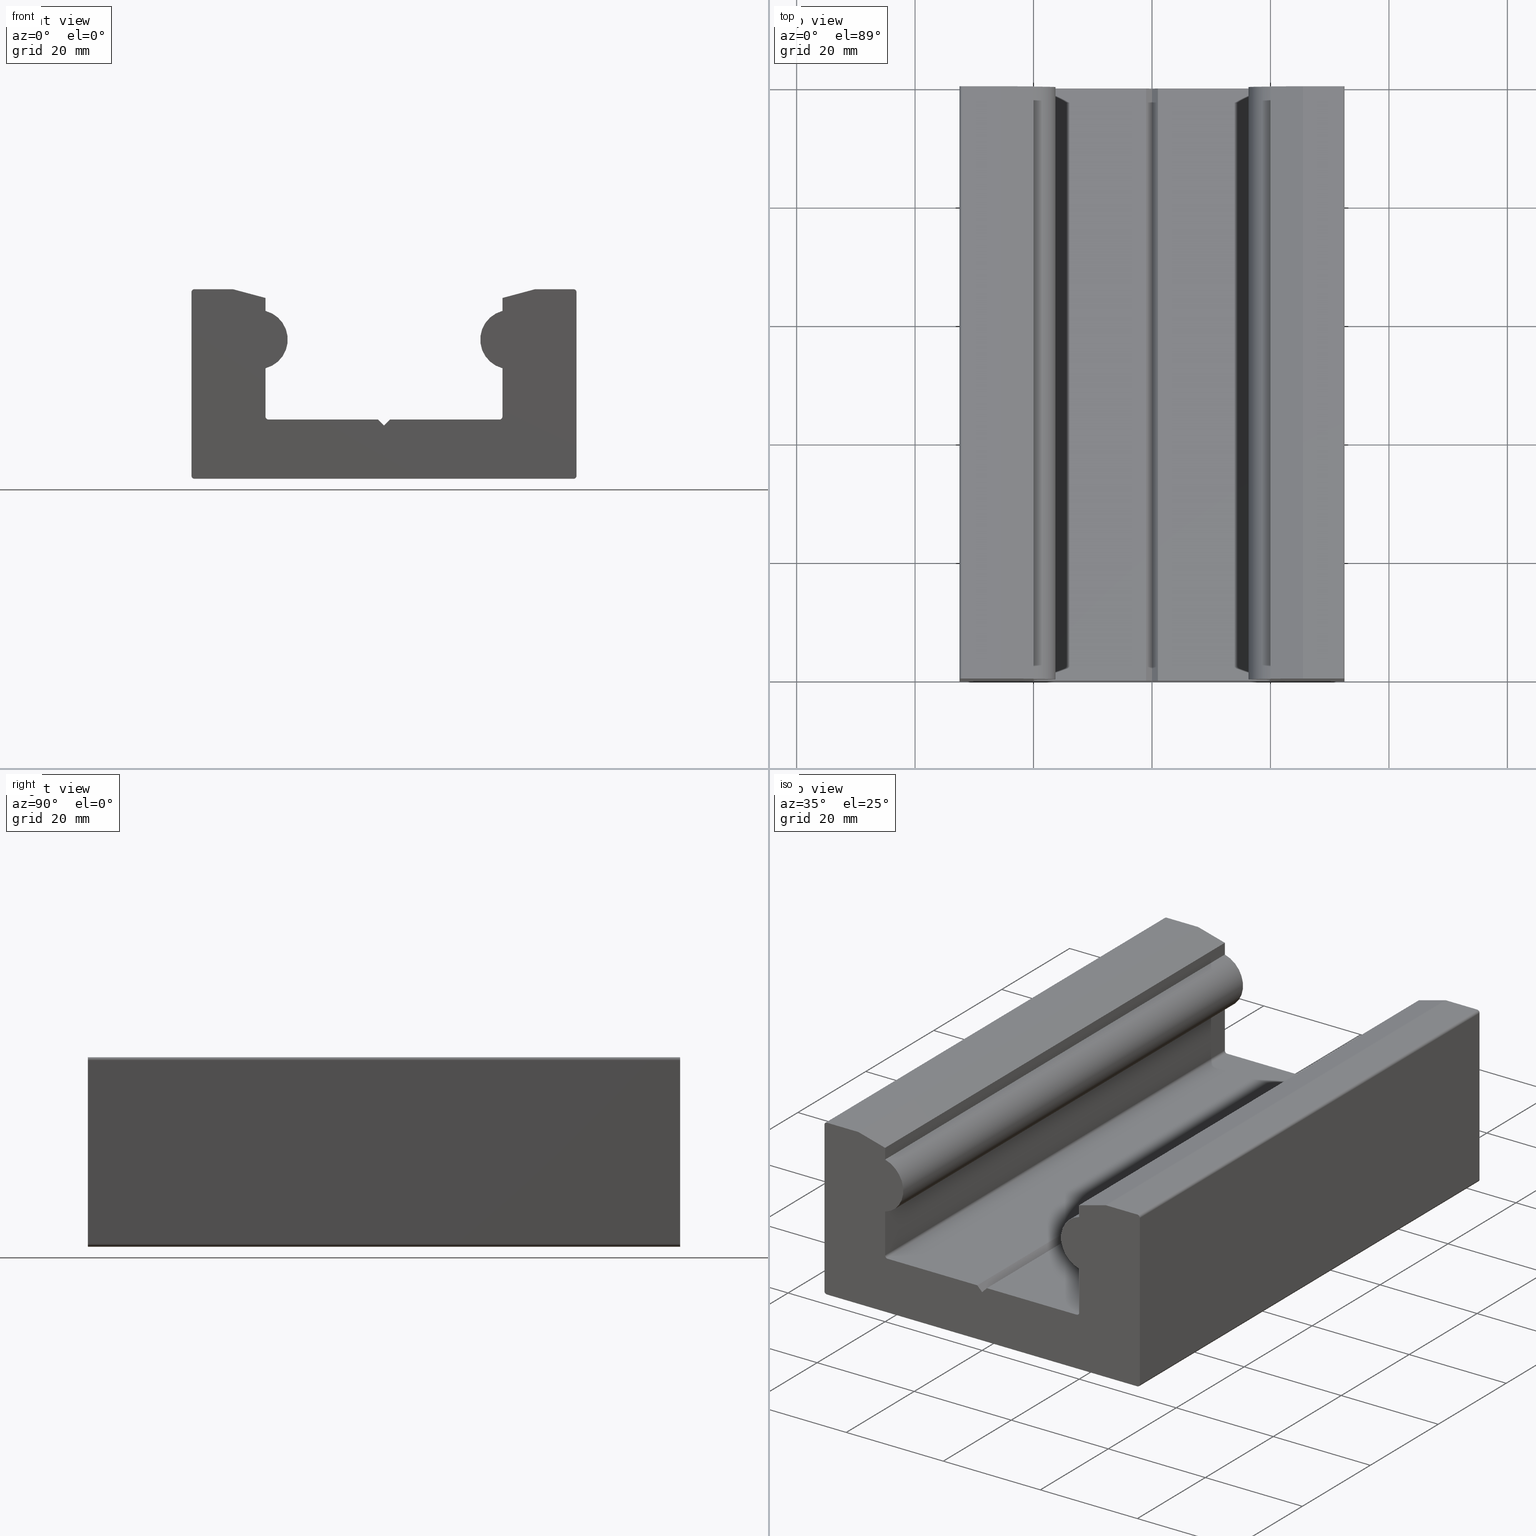
[diagram: canonical four-view strip — front | top / right | iso, engineering-drawing reading convention]
A machine part, canonical four-view strip (front | top / right | iso — engineering-drawing reading convention). The complete STEP part file that produces these views, byte-faithful:
ISO-10303-21;
HEADER;
/* Generated by software containing ST-Developer
 * from STEP Tools, Inc. (www.steptools.com) 
 */

FILE_DESCRIPTION(
/* description */ ('PROF.GUIDA IL65 65x32 '),
/* implementation_level */ '2;1');

FILE_NAME(
/* name */ 
'C:\\Users\\tecnico5\\Desktop\\SITOWEB\\BPRGD0000017\\BPRGD0000017.stp',

/* time_stamp */ '2022-07-26T17:03:16+02:00',
/* author */ ('tecnico3.vi'),
/* organization */ (''),
/* preprocessor_version */ 'ST-DEVELOPER v18.1',
/* originating_system */ 'Autodesk Inventor 2022',
/* authorisation */ '');

FILE_SCHEMA (('AUTOMOTIVE_DESIGN { 1 0 10303 214 3 1 1 }'));
ENDSEC;

DATA;
#10=MECHANICAL_DESIGN_GEOMETRIC_PRESENTATION_REPRESENTATION('',(#464,#465,
#466),#837);
#11=SHAPE_REPRESENTATION_RELATIONSHIP('SRR','None',#844,#12);
#12=ADVANCED_BREP_SHAPE_REPRESENTATION('',(#13),#836);
#13=MANIFOLD_SOLID_BREP('Solido1',#492);
#14=PLANE('',#521);
#15=PLANE('',#525);
#16=PLANE('',#526);
#17=PLANE('',#527);
#18=PLANE('',#528);
#19=PLANE('',#532);
#20=PLANE('',#533);
#21=PLANE('',#534);
#22=PLANE('',#535);
#23=PLANE('',#539);
#24=PLANE('',#540);
#25=PLANE('',#541);
#26=PLANE('',#542);
#27=PLANE('',#546);
#28=PLANE('',#550);
#29=PLANE('',#554);
#30=PLANE('',#555);
#31=FACE_OUTER_BOUND('',#56,.T.);
#32=FACE_OUTER_BOUND('',#57,.T.);
#33=FACE_OUTER_BOUND('',#58,.T.);
#34=FACE_OUTER_BOUND('',#59,.T.);
#35=FACE_OUTER_BOUND('',#60,.T.);
#36=FACE_OUTER_BOUND('',#61,.T.);
#37=FACE_OUTER_BOUND('',#62,.T.);
#38=FACE_OUTER_BOUND('',#63,.T.);
#39=FACE_OUTER_BOUND('',#64,.T.);
#40=FACE_OUTER_BOUND('',#65,.T.);
#41=FACE_OUTER_BOUND('',#66,.T.);
#42=FACE_OUTER_BOUND('',#67,.T.);
#43=FACE_OUTER_BOUND('',#68,.T.);
#44=FACE_OUTER_BOUND('',#69,.T.);
#45=FACE_OUTER_BOUND('',#70,.T.);
#46=FACE_OUTER_BOUND('',#71,.T.);
#47=FACE_OUTER_BOUND('',#72,.T.);
#48=FACE_OUTER_BOUND('',#73,.T.);
#49=FACE_OUTER_BOUND('',#74,.T.);
#50=FACE_OUTER_BOUND('',#75,.T.);
#51=FACE_OUTER_BOUND('',#76,.T.);
#52=FACE_OUTER_BOUND('',#77,.T.);
#53=FACE_OUTER_BOUND('',#78,.T.);
#54=FACE_OUTER_BOUND('',#79,.T.);
#55=FACE_OUTER_BOUND('',#80,.T.);
#56=EDGE_LOOP('',(#318,#319,#320,#321));
#57=EDGE_LOOP('',(#322,#323,#324,#325));
#58=EDGE_LOOP('',(#326,#327,#328,#329));
#59=EDGE_LOOP('',(#330,#331,#332,#333));
#60=EDGE_LOOP('',(#334,#335,#336,#337));
#61=EDGE_LOOP('',(#338,#339,#340,#341));
#62=EDGE_LOOP('',(#342,#343,#344,#345));
#63=EDGE_LOOP('',(#346,#347,#348,#349));
#64=EDGE_LOOP('',(#350,#351,#352,#353));
#65=EDGE_LOOP('',(#354,#355,#356,#357));
#66=EDGE_LOOP('',(#358,#359,#360,#361));
#67=EDGE_LOOP('',(#362,#363,#364,#365));
#68=EDGE_LOOP('',(#366,#367,#368,#369));
#69=EDGE_LOOP('',(#370,#371,#372,#373));
#70=EDGE_LOOP('',(#374,#375,#376,#377));
#71=EDGE_LOOP('',(#378,#379,#380,#381));
#72=EDGE_LOOP('',(#382,#383,#384,#385));
#73=EDGE_LOOP('',(#386,#387,#388,#389));
#74=EDGE_LOOP('',(#390,#391,#392,#393));
#75=EDGE_LOOP('',(#394,#395,#396,#397));
#76=EDGE_LOOP('',(#398,#399,#400,#401));
#77=EDGE_LOOP('',(#402,#403,#404,#405));
#78=EDGE_LOOP('',(#406,#407,#408,#409));
#79=EDGE_LOOP('',(#410,#411,#412,#413,#414,#415,#416,#417,#418,#419,#420,
#421,#422,#423,#424,#425,#426,#427,#428,#429,#430,#431,#432));
#80=EDGE_LOOP('',(#433,#434,#435,#436,#437,#438,#439,#440,#441,#442,#443,
#444,#445,#446,#447,#448,#449,#450,#451,#452,#453,#454,#455));
#81=CIRCLE('',#516,5.);
#82=CIRCLE('',#517,5.);
#83=CIRCLE('',#519,4.99999999999999);
#84=CIRCLE('',#520,4.99999999999999);
#85=CIRCLE('',#523,0.5);
#86=CIRCLE('',#524,0.5);
#87=CIRCLE('',#530,0.5);
#88=CIRCLE('',#531,0.5);
#89=CIRCLE('',#537,0.5);
#90=CIRCLE('',#538,0.5);
#91=CIRCLE('',#544,0.5);
#92=CIRCLE('',#545,0.5);
#93=CIRCLE('',#548,0.5);
#94=CIRCLE('',#549,0.5);
#95=CIRCLE('',#552,0.5);
#96=CIRCLE('',#553,0.5);
#97=LINE('',#697,#150);
#98=LINE('',#701,#151);
#99=LINE('',#706,#152);
#100=LINE('',#710,#153);
#101=LINE('',#715,#154);
#102=LINE('',#717,#155);
#103=LINE('',#719,#156);
#104=LINE('',#720,#157);
#105=LINE('',#726,#158);
#106=LINE('',#729,#159);
#107=LINE('',#731,#160);
#108=LINE('',#732,#161);
#109=LINE('',#735,#162);
#110=LINE('',#737,#163);
#111=LINE('',#738,#164);
#112=LINE('',#740,#165);
#113=LINE('',#741,#166);
#114=LINE('',#744,#167);
#115=LINE('',#746,#168);
#116=LINE('',#747,#169);
#117=LINE('',#753,#170);
#118=LINE('',#756,#171);
#119=LINE('',#758,#172);
#120=LINE('',#759,#173);
#121=LINE('',#762,#174);
#122=LINE('',#764,#175);
#123=LINE('',#765,#176);
#124=LINE('',#768,#177);
#125=LINE('',#770,#178);
#126=LINE('',#771,#179);
#127=LINE('',#774,#180);
#128=LINE('',#776,#181);
#129=LINE('',#777,#182);
#130=LINE('',#783,#183);
#131=LINE('',#785,#184);
#132=LINE('',#786,#185);
#133=LINE('',#789,#186);
#134=LINE('',#791,#187);
#135=LINE('',#792,#188);
#136=LINE('',#795,#189);
#137=LINE('',#797,#190);
#138=LINE('',#798,#191);
#139=LINE('',#801,#192);
#140=LINE('',#803,#193);
#141=LINE('',#804,#194);
#142=LINE('',#810,#195);
#143=LINE('',#813,#196);
#144=LINE('',#815,#197);
#145=LINE('',#816,#198);
#146=LINE('',#822,#199);
#147=LINE('',#825,#200);
#148=LINE('',#827,#201);
#149=LINE('',#828,#202);
#150=VECTOR('',#560,10.);
#151=VECTOR('',#563,10.);
#152=VECTOR('',#568,10.);
#153=VECTOR('',#571,10.);
#154=VECTOR('',#576,10.);
#155=VECTOR('',#577,10.);
#156=VECTOR('',#578,10.);
#157=VECTOR('',#579,10.);
#158=VECTOR('',#586,10.);
#159=VECTOR('',#589,10.);
#160=VECTOR('',#590,10.);
#161=VECTOR('',#591,10.);
#162=VECTOR('',#594,10.);
#163=VECTOR('',#595,10.);
#164=VECTOR('',#596,10.);
#165=VECTOR('',#599,10.);
#166=VECTOR('',#600,10.);
#167=VECTOR('',#603,10.);
#168=VECTOR('',#604,10.);
#169=VECTOR('',#605,10.);
#170=VECTOR('',#612,10.);
#171=VECTOR('',#615,10.);
#172=VECTOR('',#616,10.);
#173=VECTOR('',#617,10.);
#174=VECTOR('',#620,10.);
#175=VECTOR('',#621,10.);
#176=VECTOR('',#622,10.);
#177=VECTOR('',#625,10.);
#178=VECTOR('',#626,10.);
#179=VECTOR('',#627,10.);
#180=VECTOR('',#630,10.);
#181=VECTOR('',#631,10.);
#182=VECTOR('',#632,10.);
#183=VECTOR('',#639,10.);
#184=VECTOR('',#642,10.);
#185=VECTOR('',#643,10.);
#186=VECTOR('',#646,10.);
#187=VECTOR('',#647,10.);
#188=VECTOR('',#648,10.);
#189=VECTOR('',#651,10.);
#190=VECTOR('',#652,10.);
#191=VECTOR('',#653,10.);
#192=VECTOR('',#656,10.);
#193=VECTOR('',#657,10.);
#194=VECTOR('',#658,10.);
#195=VECTOR('',#665,10.);
#196=VECTOR('',#668,10.);
#197=VECTOR('',#669,10.);
#198=VECTOR('',#670,10.);
#199=VECTOR('',#677,10.);
#200=VECTOR('',#680,10.);
#201=VECTOR('',#681,10.);
#202=VECTOR('',#682,10.);
#203=VERTEX_POINT('',#695);
#204=VERTEX_POINT('',#696);
#205=VERTEX_POINT('',#698);
#206=VERTEX_POINT('',#700);
#207=VERTEX_POINT('',#704);
#208=VERTEX_POINT('',#705);
#209=VERTEX_POINT('',#707);
#210=VERTEX_POINT('',#709);
#211=VERTEX_POINT('',#713);
#212=VERTEX_POINT('',#714);
#213=VERTEX_POINT('',#716);
#214=VERTEX_POINT('',#718);
#215=VERTEX_POINT('',#722);
#216=VERTEX_POINT('',#724);
#217=VERTEX_POINT('',#728);
#218=VERTEX_POINT('',#730);
#219=VERTEX_POINT('',#734);
#220=VERTEX_POINT('',#736);
#221=VERTEX_POINT('',#743);
#222=VERTEX_POINT('',#745);
#223=VERTEX_POINT('',#749);
#224=VERTEX_POINT('',#751);
#225=VERTEX_POINT('',#755);
#226=VERTEX_POINT('',#757);
#227=VERTEX_POINT('',#761);
#228=VERTEX_POINT('',#763);
#229=VERTEX_POINT('',#767);
#230=VERTEX_POINT('',#769);
#231=VERTEX_POINT('',#773);
#232=VERTEX_POINT('',#775);
#233=VERTEX_POINT('',#779);
#234=VERTEX_POINT('',#781);
#235=VERTEX_POINT('',#788);
#236=VERTEX_POINT('',#790);
#237=VERTEX_POINT('',#794);
#238=VERTEX_POINT('',#796);
#239=VERTEX_POINT('',#800);
#240=VERTEX_POINT('',#802);
#241=VERTEX_POINT('',#806);
#242=VERTEX_POINT('',#808);
#243=VERTEX_POINT('',#812);
#244=VERTEX_POINT('',#814);
#245=VERTEX_POINT('',#818);
#246=VERTEX_POINT('',#820);
#247=VERTEX_POINT('',#824);
#248=VERTEX_POINT('',#826);
#249=EDGE_CURVE('',#203,#204,#97,.T.);
#250=EDGE_CURVE('',#205,#204,#81,.T.);
#251=EDGE_CURVE('',#206,#205,#98,.T.);
#252=EDGE_CURVE('',#203,#206,#82,.T.);
#253=EDGE_CURVE('',#207,#208,#99,.T.);
#254=EDGE_CURVE('',#209,#208,#83,.T.);
#255=EDGE_CURVE('',#210,#209,#100,.T.);
#256=EDGE_CURVE('',#207,#210,#84,.T.);
#257=EDGE_CURVE('',#211,#212,#101,.T.);
#258=EDGE_CURVE('',#212,#213,#102,.T.);
#259=EDGE_CURVE('',#214,#213,#103,.T.);
#260=EDGE_CURVE('',#211,#214,#104,.T.);
#261=EDGE_CURVE('',#215,#211,#85,.T.);
#262=EDGE_CURVE('',#216,#214,#86,.T.);
#263=EDGE_CURVE('',#215,#216,#105,.T.);
#264=EDGE_CURVE('',#217,#215,#106,.T.);
#265=EDGE_CURVE('',#218,#216,#107,.T.);
#266=EDGE_CURVE('',#217,#218,#108,.T.);
#267=EDGE_CURVE('',#219,#217,#109,.T.);
#268=EDGE_CURVE('',#220,#218,#110,.T.);
#269=EDGE_CURVE('',#219,#220,#111,.T.);
#270=EDGE_CURVE('',#203,#219,#112,.T.);
#271=EDGE_CURVE('',#204,#220,#113,.T.);
#272=EDGE_CURVE('',#221,#206,#114,.T.);
#273=EDGE_CURVE('',#222,#205,#115,.T.);
#274=EDGE_CURVE('',#221,#222,#116,.T.);
#275=EDGE_CURVE('',#223,#221,#87,.T.);
#276=EDGE_CURVE('',#224,#222,#88,.T.);
#277=EDGE_CURVE('',#223,#224,#117,.T.);
#278=EDGE_CURVE('',#225,#223,#118,.T.);
#279=EDGE_CURVE('',#226,#224,#119,.T.);
#280=EDGE_CURVE('',#225,#226,#120,.T.);
#281=EDGE_CURVE('',#227,#225,#121,.T.);
#282=EDGE_CURVE('',#228,#226,#122,.T.);
#283=EDGE_CURVE('',#227,#228,#123,.T.);
#284=EDGE_CURVE('',#229,#227,#124,.T.);
#285=EDGE_CURVE('',#230,#228,#125,.T.);
#286=EDGE_CURVE('',#229,#230,#126,.T.);
#287=EDGE_CURVE('',#231,#229,#127,.T.);
#288=EDGE_CURVE('',#232,#230,#128,.T.);
#289=EDGE_CURVE('',#231,#232,#129,.T.);
#290=EDGE_CURVE('',#233,#231,#89,.T.);
#291=EDGE_CURVE('',#234,#232,#90,.T.);
#292=EDGE_CURVE('',#233,#234,#130,.T.);
#293=EDGE_CURVE('',#207,#233,#131,.T.);
#294=EDGE_CURVE('',#208,#234,#132,.T.);
#295=EDGE_CURVE('',#235,#210,#133,.T.);
#296=EDGE_CURVE('',#236,#209,#134,.T.);
#297=EDGE_CURVE('',#235,#236,#135,.T.);
#298=EDGE_CURVE('',#237,#235,#136,.T.);
#299=EDGE_CURVE('',#238,#236,#137,.T.);
#300=EDGE_CURVE('',#237,#238,#138,.T.);
#301=EDGE_CURVE('',#239,#237,#139,.T.);
#302=EDGE_CURVE('',#240,#238,#140,.T.);
#303=EDGE_CURVE('',#239,#240,#141,.T.);
#304=EDGE_CURVE('',#241,#239,#91,.T.);
#305=EDGE_CURVE('',#242,#240,#92,.T.);
#306=EDGE_CURVE('',#241,#242,#142,.T.);
#307=EDGE_CURVE('',#243,#241,#143,.T.);
#308=EDGE_CURVE('',#244,#242,#144,.T.);
#309=EDGE_CURVE('',#243,#244,#145,.T.);
#310=EDGE_CURVE('',#245,#243,#93,.T.);
#311=EDGE_CURVE('',#246,#244,#94,.T.);
#312=EDGE_CURVE('',#245,#246,#146,.T.);
#313=EDGE_CURVE('',#247,#245,#147,.T.);
#314=EDGE_CURVE('',#248,#246,#148,.T.);
#315=EDGE_CURVE('',#247,#248,#149,.T.);
#316=EDGE_CURVE('',#212,#247,#95,.T.);
#317=EDGE_CURVE('',#213,#248,#96,.T.);
#318=ORIENTED_EDGE('',*,*,#249,.T.);
#319=ORIENTED_EDGE('',*,*,#250,.F.);
#320=ORIENTED_EDGE('',*,*,#251,.F.);
#321=ORIENTED_EDGE('',*,*,#252,.F.);
#322=ORIENTED_EDGE('',*,*,#253,.T.);
#323=ORIENTED_EDGE('',*,*,#254,.F.);
#324=ORIENTED_EDGE('',*,*,#255,.F.);
#325=ORIENTED_EDGE('',*,*,#256,.F.);
#326=ORIENTED_EDGE('',*,*,#257,.T.);
#327=ORIENTED_EDGE('',*,*,#258,.T.);
#328=ORIENTED_EDGE('',*,*,#259,.F.);
#329=ORIENTED_EDGE('',*,*,#260,.F.);
#330=ORIENTED_EDGE('',*,*,#261,.T.);
#331=ORIENTED_EDGE('',*,*,#260,.T.);
#332=ORIENTED_EDGE('',*,*,#262,.F.);
#333=ORIENTED_EDGE('',*,*,#263,.F.);
#334=ORIENTED_EDGE('',*,*,#264,.T.);
#335=ORIENTED_EDGE('',*,*,#263,.T.);
#336=ORIENTED_EDGE('',*,*,#265,.F.);
#337=ORIENTED_EDGE('',*,*,#266,.F.);
#338=ORIENTED_EDGE('',*,*,#267,.T.);
#339=ORIENTED_EDGE('',*,*,#266,.T.);
#340=ORIENTED_EDGE('',*,*,#268,.F.);
#341=ORIENTED_EDGE('',*,*,#269,.F.);
#342=ORIENTED_EDGE('',*,*,#270,.T.);
#343=ORIENTED_EDGE('',*,*,#269,.T.);
#344=ORIENTED_EDGE('',*,*,#271,.F.);
#345=ORIENTED_EDGE('',*,*,#249,.F.);
#346=ORIENTED_EDGE('',*,*,#272,.T.);
#347=ORIENTED_EDGE('',*,*,#251,.T.);
#348=ORIENTED_EDGE('',*,*,#273,.F.);
#349=ORIENTED_EDGE('',*,*,#274,.F.);
#350=ORIENTED_EDGE('',*,*,#275,.T.);
#351=ORIENTED_EDGE('',*,*,#274,.T.);
#352=ORIENTED_EDGE('',*,*,#276,.F.);
#353=ORIENTED_EDGE('',*,*,#277,.F.);
#354=ORIENTED_EDGE('',*,*,#278,.T.);
#355=ORIENTED_EDGE('',*,*,#277,.T.);
#356=ORIENTED_EDGE('',*,*,#279,.F.);
#357=ORIENTED_EDGE('',*,*,#280,.F.);
#358=ORIENTED_EDGE('',*,*,#281,.T.);
#359=ORIENTED_EDGE('',*,*,#280,.T.);
#360=ORIENTED_EDGE('',*,*,#282,.F.);
#361=ORIENTED_EDGE('',*,*,#283,.F.);
#362=ORIENTED_EDGE('',*,*,#284,.T.);
#363=ORIENTED_EDGE('',*,*,#283,.T.);
#364=ORIENTED_EDGE('',*,*,#285,.F.);
#365=ORIENTED_EDGE('',*,*,#286,.F.);
#366=ORIENTED_EDGE('',*,*,#287,.T.);
#367=ORIENTED_EDGE('',*,*,#286,.T.);
#368=ORIENTED_EDGE('',*,*,#288,.F.);
#369=ORIENTED_EDGE('',*,*,#289,.F.);
#370=ORIENTED_EDGE('',*,*,#290,.T.);
#371=ORIENTED_EDGE('',*,*,#289,.T.);
#372=ORIENTED_EDGE('',*,*,#291,.F.);
#373=ORIENTED_EDGE('',*,*,#292,.F.);
#374=ORIENTED_EDGE('',*,*,#293,.T.);
#375=ORIENTED_EDGE('',*,*,#292,.T.);
#376=ORIENTED_EDGE('',*,*,#294,.F.);
#377=ORIENTED_EDGE('',*,*,#253,.F.);
#378=ORIENTED_EDGE('',*,*,#295,.T.);
#379=ORIENTED_EDGE('',*,*,#255,.T.);
#380=ORIENTED_EDGE('',*,*,#296,.F.);
#381=ORIENTED_EDGE('',*,*,#297,.F.);
#382=ORIENTED_EDGE('',*,*,#298,.T.);
#383=ORIENTED_EDGE('',*,*,#297,.T.);
#384=ORIENTED_EDGE('',*,*,#299,.F.);
#385=ORIENTED_EDGE('',*,*,#300,.F.);
#386=ORIENTED_EDGE('',*,*,#301,.T.);
#387=ORIENTED_EDGE('',*,*,#300,.T.);
#388=ORIENTED_EDGE('',*,*,#302,.F.);
#389=ORIENTED_EDGE('',*,*,#303,.F.);
#390=ORIENTED_EDGE('',*,*,#304,.T.);
#391=ORIENTED_EDGE('',*,*,#303,.T.);
#392=ORIENTED_EDGE('',*,*,#305,.F.);
#393=ORIENTED_EDGE('',*,*,#306,.F.);
#394=ORIENTED_EDGE('',*,*,#307,.T.);
#395=ORIENTED_EDGE('',*,*,#306,.T.);
#396=ORIENTED_EDGE('',*,*,#308,.F.);
#397=ORIENTED_EDGE('',*,*,#309,.F.);
#398=ORIENTED_EDGE('',*,*,#310,.T.);
#399=ORIENTED_EDGE('',*,*,#309,.T.);
#400=ORIENTED_EDGE('',*,*,#311,.F.);
#401=ORIENTED_EDGE('',*,*,#312,.F.);
#402=ORIENTED_EDGE('',*,*,#313,.T.);
#403=ORIENTED_EDGE('',*,*,#312,.T.);
#404=ORIENTED_EDGE('',*,*,#314,.F.);
#405=ORIENTED_EDGE('',*,*,#315,.F.);
#406=ORIENTED_EDGE('',*,*,#316,.T.);
#407=ORIENTED_EDGE('',*,*,#315,.T.);
#408=ORIENTED_EDGE('',*,*,#317,.F.);
#409=ORIENTED_EDGE('',*,*,#258,.F.);
#410=ORIENTED_EDGE('',*,*,#317,.T.);
#411=ORIENTED_EDGE('',*,*,#314,.T.);
#412=ORIENTED_EDGE('',*,*,#311,.T.);
#413=ORIENTED_EDGE('',*,*,#308,.T.);
#414=ORIENTED_EDGE('',*,*,#305,.T.);
#415=ORIENTED_EDGE('',*,*,#302,.T.);
#416=ORIENTED_EDGE('',*,*,#299,.T.);
#417=ORIENTED_EDGE('',*,*,#296,.T.);
#418=ORIENTED_EDGE('',*,*,#254,.T.);
#419=ORIENTED_EDGE('',*,*,#294,.T.);
#420=ORIENTED_EDGE('',*,*,#291,.T.);
#421=ORIENTED_EDGE('',*,*,#288,.T.);
#422=ORIENTED_EDGE('',*,*,#285,.T.);
#423=ORIENTED_EDGE('',*,*,#282,.T.);
#424=ORIENTED_EDGE('',*,*,#279,.T.);
#425=ORIENTED_EDGE('',*,*,#276,.T.);
#426=ORIENTED_EDGE('',*,*,#273,.T.);
#427=ORIENTED_EDGE('',*,*,#250,.T.);
#428=ORIENTED_EDGE('',*,*,#271,.T.);
#429=ORIENTED_EDGE('',*,*,#268,.T.);
#430=ORIENTED_EDGE('',*,*,#265,.T.);
#431=ORIENTED_EDGE('',*,*,#262,.T.);
#432=ORIENTED_EDGE('',*,*,#259,.T.);
#433=ORIENTED_EDGE('',*,*,#316,.F.);
#434=ORIENTED_EDGE('',*,*,#257,.F.);
#435=ORIENTED_EDGE('',*,*,#261,.F.);
#436=ORIENTED_EDGE('',*,*,#264,.F.);
#437=ORIENTED_EDGE('',*,*,#267,.F.);
#438=ORIENTED_EDGE('',*,*,#270,.F.);
#439=ORIENTED_EDGE('',*,*,#252,.T.);
#440=ORIENTED_EDGE('',*,*,#272,.F.);
#441=ORIENTED_EDGE('',*,*,#275,.F.);
#442=ORIENTED_EDGE('',*,*,#278,.F.);
#443=ORIENTED_EDGE('',*,*,#281,.F.);
#444=ORIENTED_EDGE('',*,*,#284,.F.);
#445=ORIENTED_EDGE('',*,*,#287,.F.);
#446=ORIENTED_EDGE('',*,*,#290,.F.);
#447=ORIENTED_EDGE('',*,*,#293,.F.);
#448=ORIENTED_EDGE('',*,*,#256,.T.);
#449=ORIENTED_EDGE('',*,*,#295,.F.);
#450=ORIENTED_EDGE('',*,*,#298,.F.);
#451=ORIENTED_EDGE('',*,*,#301,.F.);
#452=ORIENTED_EDGE('',*,*,#304,.F.);
#453=ORIENTED_EDGE('',*,*,#307,.F.);
#454=ORIENTED_EDGE('',*,*,#310,.F.);
#455=ORIENTED_EDGE('',*,*,#313,.F.);
#456=CYLINDRICAL_SURFACE('',#515,5.);
#457=CYLINDRICAL_SURFACE('',#518,4.99999999999999);
#458=CYLINDRICAL_SURFACE('',#522,0.5);
#459=CYLINDRICAL_SURFACE('',#529,0.5);
#460=CYLINDRICAL_SURFACE('',#536,0.5);
#461=CYLINDRICAL_SURFACE('',#543,0.5);
#462=CYLINDRICAL_SURFACE('',#547,0.5);
#463=CYLINDRICAL_SURFACE('',#551,0.5);
#464=STYLED_ITEM('',(#854),#467);
#465=STYLED_ITEM('',(#854),#468);
#466=STYLED_ITEM('',(#853),#13);
#467=ADVANCED_FACE('',(#31),#456,.T.);
#468=ADVANCED_FACE('',(#32),#457,.T.);
#469=ADVANCED_FACE('',(#33),#14,.T.);
#470=ADVANCED_FACE('',(#34),#458,.T.);
#471=ADVANCED_FACE('',(#35),#15,.T.);
#472=ADVANCED_FACE('',(#36),#16,.T.);
#473=ADVANCED_FACE('',(#37),#17,.T.);
#474=ADVANCED_FACE('',(#38),#18,.T.);
#475=ADVANCED_FACE('',(#39),#459,.F.);
#476=ADVANCED_FACE('',(#40),#19,.T.);
#477=ADVANCED_FACE('',(#41),#20,.T.);
#478=ADVANCED_FACE('',(#42),#21,.T.);
#479=ADVANCED_FACE('',(#43),#22,.T.);
#480=ADVANCED_FACE('',(#44),#460,.F.);
#481=ADVANCED_FACE('',(#45),#23,.T.);
#482=ADVANCED_FACE('',(#46),#24,.T.);
#483=ADVANCED_FACE('',(#47),#25,.T.);
#484=ADVANCED_FACE('',(#48),#26,.T.);
#485=ADVANCED_FACE('',(#49),#461,.T.);
#486=ADVANCED_FACE('',(#50),#27,.T.);
#487=ADVANCED_FACE('',(#51),#462,.T.);
#488=ADVANCED_FACE('',(#52),#28,.T.);
#489=ADVANCED_FACE('',(#53),#463,.T.);
#490=ADVANCED_FACE('',(#54),#29,.T.);
#491=ADVANCED_FACE('',(#55),#30,.F.);
#492=CLOSED_SHELL('',(#467,#468,#469,#470,#471,#472,#473,#474,#475,#476,
#477,#478,#479,#480,#481,#482,#483,#484,#485,#486,#487,#488,#489,#490,#491));
#493=DERIVED_UNIT_ELEMENT(#496,1.);
#494=DERIVED_UNIT_ELEMENT(#839,-3.);
#495=DIMENSIONAL_EXPONENTS(1.,0.,0.,0.,0.,0.,0.);
#496=(
CONVERSION_BASED_UNIT('gram',#498)
MASS_UNIT()
NAMED_UNIT(#495)
);
#497=(
MASS_UNIT()
NAMED_UNIT(*)
SI_UNIT(.KILO.,.GRAM.)
);
#498=MASS_MEASURE_WITH_UNIT(MASS_MEASURE(0.001),#497);
#499=DERIVED_UNIT((#493,#494));
#500=MEASURE_REPRESENTATION_ITEM('density measure',
POSITIVE_RATIO_MEASURE(2.7),#499);
#501=PROPERTY_DEFINITION_REPRESENTATION(#506,#503);
#502=PROPERTY_DEFINITION_REPRESENTATION(#507,#504);
#503=REPRESENTATION('material name',(#505),#836);
#504=REPRESENTATION('density',(#500),#836);
#505=DESCRIPTIVE_REPRESENTATION_ITEM('Alluminio 6060','Alluminio 6060');
#506=PROPERTY_DEFINITION('material property','material name',#846);
#507=PROPERTY_DEFINITION('material property','density of part',#846);
#508=DATE_TIME_ROLE('creation_date');
#509=APPLIED_DATE_AND_TIME_ASSIGNMENT(#510,#508,(#846));
#510=DATE_AND_TIME(#511,#512);
#511=CALENDAR_DATE(2018,8,2);
#512=LOCAL_TIME(0,0,0.,#513);
#513=COORDINATED_UNIVERSAL_TIME_OFFSET(0,0,.BEHIND.);
#514=AXIS2_PLACEMENT_3D('placement',#693,#556,#557);
#515=AXIS2_PLACEMENT_3D('',#694,#558,#559);
#516=AXIS2_PLACEMENT_3D('',#699,#561,#562);
#517=AXIS2_PLACEMENT_3D('',#702,#564,#565);
#518=AXIS2_PLACEMENT_3D('',#703,#566,#567);
#519=AXIS2_PLACEMENT_3D('',#708,#569,#570);
#520=AXIS2_PLACEMENT_3D('',#711,#572,#573);
#521=AXIS2_PLACEMENT_3D('',#712,#574,#575);
#522=AXIS2_PLACEMENT_3D('',#721,#580,#581);
#523=AXIS2_PLACEMENT_3D('',#723,#582,#583);
#524=AXIS2_PLACEMENT_3D('',#725,#584,#585);
#525=AXIS2_PLACEMENT_3D('',#727,#587,#588);
#526=AXIS2_PLACEMENT_3D('',#733,#592,#593);
#527=AXIS2_PLACEMENT_3D('',#739,#597,#598);
#528=AXIS2_PLACEMENT_3D('',#742,#601,#602);
#529=AXIS2_PLACEMENT_3D('',#748,#606,#607);
#530=AXIS2_PLACEMENT_3D('',#750,#608,#609);
#531=AXIS2_PLACEMENT_3D('',#752,#610,#611);
#532=AXIS2_PLACEMENT_3D('',#754,#613,#614);
#533=AXIS2_PLACEMENT_3D('',#760,#618,#619);
#534=AXIS2_PLACEMENT_3D('',#766,#623,#624);
#535=AXIS2_PLACEMENT_3D('',#772,#628,#629);
#536=AXIS2_PLACEMENT_3D('',#778,#633,#634);
#537=AXIS2_PLACEMENT_3D('',#780,#635,#636);
#538=AXIS2_PLACEMENT_3D('',#782,#637,#638);
#539=AXIS2_PLACEMENT_3D('',#784,#640,#641);
#540=AXIS2_PLACEMENT_3D('',#787,#644,#645);
#541=AXIS2_PLACEMENT_3D('',#793,#649,#650);
#542=AXIS2_PLACEMENT_3D('',#799,#654,#655);
#543=AXIS2_PLACEMENT_3D('',#805,#659,#660);
#544=AXIS2_PLACEMENT_3D('',#807,#661,#662);
#545=AXIS2_PLACEMENT_3D('',#809,#663,#664);
#546=AXIS2_PLACEMENT_3D('',#811,#666,#667);
#547=AXIS2_PLACEMENT_3D('',#817,#671,#672);
#548=AXIS2_PLACEMENT_3D('',#819,#673,#674);
#549=AXIS2_PLACEMENT_3D('',#821,#675,#676);
#550=AXIS2_PLACEMENT_3D('',#823,#678,#679);
#551=AXIS2_PLACEMENT_3D('',#829,#683,#684);
#552=AXIS2_PLACEMENT_3D('',#830,#685,#686);
#553=AXIS2_PLACEMENT_3D('',#831,#687,#688);
#554=AXIS2_PLACEMENT_3D('',#832,#689,#690);
#555=AXIS2_PLACEMENT_3D('',#833,#691,#692);
#556=DIRECTION('axis',(0.,0.,1.));
#557=DIRECTION('refdir',(1.,0.,0.));
#558=DIRECTION('center_axis',(0.,1.,0.));
#559=DIRECTION('ref_axis',(-1.,0.,1.22464679914735E-16));
#560=DIRECTION('',(0.,1.,0.));
#561=DIRECTION('center_axis',(0.,1.,0.));
#562=DIRECTION('ref_axis',(1.,0.,0.));
#563=DIRECTION('',(0.,1.,0.));
#564=DIRECTION('center_axis',(0.,-1.,0.));
#565=DIRECTION('ref_axis',(1.,0.,0.));
#566=DIRECTION('center_axis',(0.,1.,0.));
#567=DIRECTION('ref_axis',(1.,0.,0.));
#568=DIRECTION('',(0.,1.,0.));
#569=DIRECTION('center_axis',(0.,1.,0.));
#570=DIRECTION('ref_axis',(1.,0.,0.));
#571=DIRECTION('',(0.,1.,0.));
#572=DIRECTION('center_axis',(0.,-1.,0.));
#573=DIRECTION('ref_axis',(1.,0.,0.));
#574=DIRECTION('center_axis',(1.,0.,0.));
#575=DIRECTION('ref_axis',(0.,0.,-1.));
#576=DIRECTION('',(0.,0.,-1.));
#577=DIRECTION('',(0.,1.,0.));
#578=DIRECTION('',(0.,0.,-1.));
#579=DIRECTION('',(0.,1.,0.));
#580=DIRECTION('center_axis',(0.,1.,0.));
#581=DIRECTION('ref_axis',(0.,0.,1.));
#582=DIRECTION('center_axis',(0.,1.,0.));
#583=DIRECTION('ref_axis',(0.,0.,1.));
#584=DIRECTION('center_axis',(0.,1.,0.));
#585=DIRECTION('ref_axis',(0.,0.,1.));
#586=DIRECTION('',(0.,1.,0.));
#587=DIRECTION('center_axis',(0.,0.,1.));
#588=DIRECTION('ref_axis',(1.,0.,0.));
#589=DIRECTION('',(1.,0.,0.));
#590=DIRECTION('',(1.,0.,0.));
#591=DIRECTION('',(0.,1.,0.));
#592=DIRECTION('center_axis',(-0.25881904510252,0.,0.965925826289069));
#593=DIRECTION('ref_axis',(0.965925826289069,0.,0.25881904510252));
#594=DIRECTION('',(0.965925826289069,0.,0.25881904510252));
#595=DIRECTION('',(0.965925826289069,0.,0.25881904510252));
#596=DIRECTION('',(0.,1.,0.));
#597=DIRECTION('center_axis',(-1.,0.,-2.03239814758226E-15));
#598=DIRECTION('ref_axis',(-2.03239814758226E-15,0.,1.));
#599=DIRECTION('',(-2.03239814758226E-15,0.,1.));
#600=DIRECTION('',(-2.03239814758226E-15,0.,1.));
#601=DIRECTION('center_axis',(-1.,0.,0.));
#602=DIRECTION('ref_axis',(0.,0.,1.));
#603=DIRECTION('',(0.,0.,1.));
#604=DIRECTION('',(0.,0.,1.));
#605=DIRECTION('',(0.,1.,0.));
#606=DIRECTION('center_axis',(0.,1.,0.));
#607=DIRECTION('ref_axis',(-1.,0.,0.));
#608=DIRECTION('center_axis',(0.,-1.,0.));
#609=DIRECTION('ref_axis',(-1.,0.,0.));
#610=DIRECTION('center_axis',(0.,-1.,0.));
#611=DIRECTION('ref_axis',(-1.,0.,0.));
#612=DIRECTION('',(0.,1.,0.));
#613=DIRECTION('center_axis',(1.80036166406601E-16,0.,1.));
#614=DIRECTION('ref_axis',(1.,0.,-1.80036166406601E-16));
#615=DIRECTION('',(1.,0.,-1.80036166406601E-16));
#616=DIRECTION('',(1.,0.,-1.80036166406601E-16));
#617=DIRECTION('',(0.,1.,0.));
#618=DIRECTION('center_axis',(-0.70710677206149,0.,0.707106790311605));
#619=DIRECTION('ref_axis',(0.707106790311605,0.,0.70710677206149));
#620=DIRECTION('',(0.707106790311605,0.,0.70710677206149));
#621=DIRECTION('',(0.707106790311605,0.,0.70710677206149));
#622=DIRECTION('',(0.,1.,0.));
#623=DIRECTION('center_axis',(0.70710679031161,0.,0.707106772061485));
#624=DIRECTION('ref_axis',(0.707106772061485,0.,-0.70710679031161));
#625=DIRECTION('',(0.707106772061485,0.,-0.70710679031161));
#626=DIRECTION('',(0.707106772061485,0.,-0.70710679031161));
#627=DIRECTION('',(0.,1.,0.));
#628=DIRECTION('center_axis',(-1.2002411060284E-16,0.,1.));
#629=DIRECTION('ref_axis',(1.,0.,1.2002411060284E-16));
#630=DIRECTION('',(1.,0.,1.2002411060284E-16));
#631=DIRECTION('',(1.,0.,1.2002411060284E-16));
#632=DIRECTION('',(0.,1.,0.));
#633=DIRECTION('center_axis',(0.,1.,0.));
#634=DIRECTION('ref_axis',(0.,0.,1.));
#635=DIRECTION('center_axis',(0.,-1.,0.));
#636=DIRECTION('ref_axis',(0.,0.,1.));
#637=DIRECTION('center_axis',(0.,-1.,0.));
#638=DIRECTION('ref_axis',(0.,0.,1.));
#639=DIRECTION('',(0.,1.,0.));
#640=DIRECTION('center_axis',(1.,0.,-2.72154482456863E-16));
#641=DIRECTION('ref_axis',(-2.72154482456863E-16,0.,-1.));
#642=DIRECTION('',(-2.72154482456863E-16,0.,-1.));
#643=DIRECTION('',(-2.72154482456863E-16,0.,-1.));
#644=DIRECTION('center_axis',(1.,0.,0.));
#645=DIRECTION('ref_axis',(0.,0.,-1.));
#646=DIRECTION('',(0.,0.,-1.));
#647=DIRECTION('',(0.,0.,-1.));
#648=DIRECTION('',(0.,1.,0.));
#649=DIRECTION('center_axis',(0.258819045102521,0.,0.965925826289068));
#650=DIRECTION('ref_axis',(0.965925826289068,0.,-0.258819045102521));
#651=DIRECTION('',(0.965925826289068,0.,-0.258819045102521));
#652=DIRECTION('',(0.965925826289068,0.,-0.258819045102521));
#653=DIRECTION('',(0.,1.,0.));
#654=DIRECTION('center_axis',(0.,0.,1.));
#655=DIRECTION('ref_axis',(1.,0.,0.));
#656=DIRECTION('',(1.,0.,0.));
#657=DIRECTION('',(1.,0.,0.));
#658=DIRECTION('',(0.,1.,0.));
#659=DIRECTION('center_axis',(0.,1.,0.));
#660=DIRECTION('ref_axis',(-1.,0.,0.));
#661=DIRECTION('center_axis',(0.,1.,0.));
#662=DIRECTION('ref_axis',(-1.,0.,0.));
#663=DIRECTION('center_axis',(0.,1.,0.));
#664=DIRECTION('ref_axis',(-1.,0.,0.));
#665=DIRECTION('',(0.,1.,0.));
#666=DIRECTION('center_axis',(-1.,0.,0.));
#667=DIRECTION('ref_axis',(0.,0.,1.));
#668=DIRECTION('',(0.,0.,1.));
#669=DIRECTION('',(0.,0.,1.));
#670=DIRECTION('',(0.,1.,0.));
#671=DIRECTION('center_axis',(0.,1.,0.));
#672=DIRECTION('ref_axis',(0.,0.,-1.));
#673=DIRECTION('center_axis',(0.,1.,0.));
#674=DIRECTION('ref_axis',(0.,0.,-1.));
#675=DIRECTION('center_axis',(0.,1.,0.));
#676=DIRECTION('ref_axis',(0.,0.,-1.));
#677=DIRECTION('',(0.,1.,0.));
#678=DIRECTION('center_axis',(0.,0.,-1.));
#679=DIRECTION('ref_axis',(-1.,0.,0.));
#680=DIRECTION('',(-1.,0.,0.));
#681=DIRECTION('',(-1.,0.,0.));
#682=DIRECTION('',(0.,1.,0.));
#683=DIRECTION('center_axis',(0.,1.,0.));
#684=DIRECTION('ref_axis',(1.,0.,0.));
#685=DIRECTION('center_axis',(0.,1.,0.));
#686=DIRECTION('ref_axis',(1.,0.,0.));
#687=DIRECTION('center_axis',(0.,1.,0.));
#688=DIRECTION('ref_axis',(1.,0.,0.));
#689=DIRECTION('center_axis',(0.,1.,0.));
#690=DIRECTION('ref_axis',(0.,0.,1.));
#691=DIRECTION('center_axis',(0.,1.,0.));
#692=DIRECTION('ref_axis',(0.,0.,1.));
#693=CARTESIAN_POINT('',(0.,0.,0.));
#694=CARTESIAN_POINT('Origin',(21.25,0.,7.5));
#695=CARTESIAN_POINT('',(20.,0.,12.3412291827593));
#696=CARTESIAN_POINT('',(20.,100.,12.3412291827593));
#697=CARTESIAN_POINT('',(20.,0.,12.3412291827593));
#698=CARTESIAN_POINT('',(20.,100.,2.65877081724073));
#699=CARTESIAN_POINT('Origin',(21.25,100.,7.5));
#700=CARTESIAN_POINT('',(20.,0.,2.65877081724073));
#701=CARTESIAN_POINT('',(20.,0.,2.65877081724073));
#702=CARTESIAN_POINT('Origin',(21.25,0.,7.5));
#703=CARTESIAN_POINT('Origin',(-21.25,0.,7.5));
#704=CARTESIAN_POINT('',(-20.,0.,2.65877081724073));
#705=CARTESIAN_POINT('',(-20.,100.,2.65877081724073));
#706=CARTESIAN_POINT('',(-20.,0.,2.65877081724073));
#707=CARTESIAN_POINT('',(-20.,100.,12.3412291827593));
#708=CARTESIAN_POINT('Origin',(-21.25,100.,7.5));
#709=CARTESIAN_POINT('',(-20.,0.,12.3412291827593));
#710=CARTESIAN_POINT('',(-20.,0.,12.3412291827593));
#711=CARTESIAN_POINT('Origin',(-21.25,0.,7.5));
#712=CARTESIAN_POINT('Origin',(32.5,0.,15.5));
#713=CARTESIAN_POINT('',(32.5,0.,15.5));
#714=CARTESIAN_POINT('',(32.5,0.,-15.5));
#715=CARTESIAN_POINT('',(32.5,0.,15.5));
#716=CARTESIAN_POINT('',(32.5,100.,-15.5));
#717=CARTESIAN_POINT('',(32.5,0.,-15.5));
#718=CARTESIAN_POINT('',(32.5,100.,15.5));
#719=CARTESIAN_POINT('',(32.5,100.,15.5));
#720=CARTESIAN_POINT('',(32.5,0.,15.5));
#721=CARTESIAN_POINT('Origin',(32.,0.,15.5));
#722=CARTESIAN_POINT('',(32.,0.,16.));
#723=CARTESIAN_POINT('Origin',(32.,0.,15.5));
#724=CARTESIAN_POINT('',(32.,100.,16.));
#725=CARTESIAN_POINT('Origin',(32.,100.,15.5));
#726=CARTESIAN_POINT('',(32.,0.,16.));
#727=CARTESIAN_POINT('Origin',(25.5,0.,16.));
#728=CARTESIAN_POINT('',(25.5,0.,16.));
#729=CARTESIAN_POINT('',(25.5,0.,16.));
#730=CARTESIAN_POINT('',(25.5,100.,16.));
#731=CARTESIAN_POINT('',(25.5,100.,16.));
#732=CARTESIAN_POINT('',(25.5,0.,16.));
#733=CARTESIAN_POINT('Origin',(20.,0.,14.5262794416288));
#734=CARTESIAN_POINT('',(20.,0.,14.5262794416288));
#735=CARTESIAN_POINT('',(20.,0.,14.5262794416288));
#736=CARTESIAN_POINT('',(20.,100.,14.5262794416288));
#737=CARTESIAN_POINT('',(20.,100.,14.5262794416288));
#738=CARTESIAN_POINT('',(20.,0.,14.5262794416288));
#739=CARTESIAN_POINT('Origin',(20.,0.,12.3412291827593));
#740=CARTESIAN_POINT('',(20.,0.,12.3412291827593));
#741=CARTESIAN_POINT('',(20.,100.,12.3412291827593));
#742=CARTESIAN_POINT('Origin',(20.,0.,-5.50000000000001));
#743=CARTESIAN_POINT('',(20.,0.,-5.50000000000001));
#744=CARTESIAN_POINT('',(20.,0.,-5.50000000000001));
#745=CARTESIAN_POINT('',(20.,100.,-5.50000000000001));
#746=CARTESIAN_POINT('',(20.,100.,-5.50000000000001));
#747=CARTESIAN_POINT('',(20.,0.,-5.50000000000001));
#748=CARTESIAN_POINT('Origin',(19.5,0.,-5.50000000000001));
#749=CARTESIAN_POINT('',(19.5,0.,-6.00000000000001));
#750=CARTESIAN_POINT('Origin',(19.5,0.,-5.50000000000001));
#751=CARTESIAN_POINT('',(19.5,100.,-6.00000000000001));
#752=CARTESIAN_POINT('Origin',(19.5,100.,-5.50000000000001));
#753=CARTESIAN_POINT('',(19.5,0.,-6.00000000000001));
#754=CARTESIAN_POINT('Origin',(1.00000002580957,0.,-6.));
#755=CARTESIAN_POINT('',(1.00000002580957,0.,-6.));
#756=CARTESIAN_POINT('',(1.00000002580957,0.,-6.));
#757=CARTESIAN_POINT('',(1.00000002580957,100.,-6.));
#758=CARTESIAN_POINT('',(1.00000002580957,100.,-6.));
#759=CARTESIAN_POINT('',(1.00000002580957,0.,-6.));
#760=CARTESIAN_POINT('Origin',(0.,0.,-7.00000000000001));
#761=CARTESIAN_POINT('',(0.,0.,-7.00000000000001));
#762=CARTESIAN_POINT('',(0.,0.,-7.00000000000001));
#763=CARTESIAN_POINT('',(0.,100.,-7.00000000000001));
#764=CARTESIAN_POINT('',(0.,100.,-7.00000000000001));
#765=CARTESIAN_POINT('',(0.,0.,-7.00000000000001));
#766=CARTESIAN_POINT('Origin',(-0.999999974190432,0.,-6.));
#767=CARTESIAN_POINT('',(-0.999999974190432,0.,-6.));
#768=CARTESIAN_POINT('',(-0.999999974190432,0.,-6.));
#769=CARTESIAN_POINT('',(-0.999999974190433,100.,-6.));
#770=CARTESIAN_POINT('',(-0.999999974190432,100.,-6.));
#771=CARTESIAN_POINT('',(-0.999999974190432,0.,-6.));
#772=CARTESIAN_POINT('Origin',(-19.5,0.,-6.00000000000001));
#773=CARTESIAN_POINT('',(-19.5,0.,-6.00000000000001));
#774=CARTESIAN_POINT('',(-19.5,0.,-6.00000000000001));
#775=CARTESIAN_POINT('',(-19.5,100.,-6.00000000000001));
#776=CARTESIAN_POINT('',(-19.5,100.,-6.00000000000001));
#777=CARTESIAN_POINT('',(-19.5,0.,-6.00000000000001));
#778=CARTESIAN_POINT('Origin',(-19.5,0.,-5.5));
#779=CARTESIAN_POINT('',(-20.,0.,-5.5));
#780=CARTESIAN_POINT('Origin',(-19.5,0.,-5.5));
#781=CARTESIAN_POINT('',(-20.,100.,-5.5));
#782=CARTESIAN_POINT('Origin',(-19.5,100.,-5.5));
#783=CARTESIAN_POINT('',(-20.,0.,-5.5));
#784=CARTESIAN_POINT('Origin',(-20.,0.,2.65877081724073));
#785=CARTESIAN_POINT('',(-20.,0.,2.65877081724073));
#786=CARTESIAN_POINT('',(-20.,100.,2.65877081724073));
#787=CARTESIAN_POINT('Origin',(-20.,0.,14.5262794416288));
#788=CARTESIAN_POINT('',(-20.,0.,14.5262794416288));
#789=CARTESIAN_POINT('',(-20.,0.,14.5262794416288));
#790=CARTESIAN_POINT('',(-20.,100.,14.5262794416288));
#791=CARTESIAN_POINT('',(-20.,100.,14.5262794416288));
#792=CARTESIAN_POINT('',(-20.,0.,14.5262794416288));
#793=CARTESIAN_POINT('Origin',(-25.5,0.,16.));
#794=CARTESIAN_POINT('',(-25.5,0.,16.));
#795=CARTESIAN_POINT('',(-25.5,0.,16.));
#796=CARTESIAN_POINT('',(-25.5,100.,16.));
#797=CARTESIAN_POINT('',(-25.5,100.,16.));
#798=CARTESIAN_POINT('',(-25.5,0.,16.));
#799=CARTESIAN_POINT('Origin',(-32.,0.,16.));
#800=CARTESIAN_POINT('',(-32.,0.,16.));
#801=CARTESIAN_POINT('',(-32.,0.,16.));
#802=CARTESIAN_POINT('',(-32.,100.,16.));
#803=CARTESIAN_POINT('',(-32.,100.,16.));
#804=CARTESIAN_POINT('',(-32.,0.,16.));
#805=CARTESIAN_POINT('Origin',(-32.,0.,15.5));
#806=CARTESIAN_POINT('',(-32.5,0.,15.5));
#807=CARTESIAN_POINT('Origin',(-32.,0.,15.5));
#808=CARTESIAN_POINT('',(-32.5,100.,15.5));
#809=CARTESIAN_POINT('Origin',(-32.,100.,15.5));
#810=CARTESIAN_POINT('',(-32.5,0.,15.5));
#811=CARTESIAN_POINT('Origin',(-32.5,0.,-15.5));
#812=CARTESIAN_POINT('',(-32.5,0.,-15.5));
#813=CARTESIAN_POINT('',(-32.5,0.,-15.5));
#814=CARTESIAN_POINT('',(-32.5,100.,-15.5));
#815=CARTESIAN_POINT('',(-32.5,100.,-15.5));
#816=CARTESIAN_POINT('',(-32.5,0.,-15.5));
#817=CARTESIAN_POINT('Origin',(-32.,0.,-15.5));
#818=CARTESIAN_POINT('',(-32.,0.,-16.));
#819=CARTESIAN_POINT('Origin',(-32.,0.,-15.5));
#820=CARTESIAN_POINT('',(-32.,100.,-16.));
#821=CARTESIAN_POINT('Origin',(-32.,100.,-15.5));
#822=CARTESIAN_POINT('',(-32.,0.,-16.));
#823=CARTESIAN_POINT('Origin',(32.,0.,-16.));
#824=CARTESIAN_POINT('',(32.,0.,-16.));
#825=CARTESIAN_POINT('',(32.,0.,-16.));
#826=CARTESIAN_POINT('',(32.,100.,-16.));
#827=CARTESIAN_POINT('',(32.,100.,-16.));
#828=CARTESIAN_POINT('',(32.,0.,-16.));
#829=CARTESIAN_POINT('Origin',(32.,0.,-15.5));
#830=CARTESIAN_POINT('Origin',(32.,0.,-15.5));
#831=CARTESIAN_POINT('Origin',(32.,100.,-15.5));
#832=CARTESIAN_POINT('Origin',(1.29523736400767E-11,100.,-2.68312830319299));
#833=CARTESIAN_POINT('Origin',(1.29523736400767E-11,0.,-2.68312830319299));
#834=UNCERTAINTY_MEASURE_WITH_UNIT(LENGTH_MEASURE(0.01),#838,
'DISTANCE_ACCURACY_VALUE',
'Maximum model space distance between geometric entities at asserted c
onnectivities');
#835=UNCERTAINTY_MEASURE_WITH_UNIT(LENGTH_MEASURE(0.01),#838,
'DISTANCE_ACCURACY_VALUE',
'Maximum model space distance between geometric entities at asserted c
onnectivities');
#836=(
GEOMETRIC_REPRESENTATION_CONTEXT(3)
GLOBAL_UNCERTAINTY_ASSIGNED_CONTEXT((#834))
GLOBAL_UNIT_ASSIGNED_CONTEXT((#838,#840,#841))
REPRESENTATION_CONTEXT('','3D')
);
#837=(
GEOMETRIC_REPRESENTATION_CONTEXT(3)
GLOBAL_UNCERTAINTY_ASSIGNED_CONTEXT((#835))
GLOBAL_UNIT_ASSIGNED_CONTEXT((#838,#840,#841))
REPRESENTATION_CONTEXT('','3D')
);
#838=(
LENGTH_UNIT()
NAMED_UNIT(*)
SI_UNIT(.MILLI.,.METRE.)
);
#839=(
LENGTH_UNIT()
NAMED_UNIT(*)
SI_UNIT(.CENTI.,.METRE.)
);
#840=(
NAMED_UNIT(*)
PLANE_ANGLE_UNIT()
SI_UNIT($,.RADIAN.)
);
#841=(
NAMED_UNIT(*)
SI_UNIT($,.STERADIAN.)
SOLID_ANGLE_UNIT()
);
#842=SHAPE_DEFINITION_REPRESENTATION(#843,#844);
#843=PRODUCT_DEFINITION_SHAPE('',$,#846);
#844=SHAPE_REPRESENTATION('',(#514),#836);
#845=PRODUCT_DEFINITION_CONTEXT('part definition',#850,'design');
#846=PRODUCT_DEFINITION('BPRGD0000017','BPRGD0000017',#847,#845);
#847=PRODUCT_DEFINITION_FORMATION('A',$,#852);
#848=PRODUCT_RELATED_PRODUCT_CATEGORY('BPRGD0000017','BPRGD0000017',(#852));
#849=APPLICATION_PROTOCOL_DEFINITION('international standard',
'automotive_design',2009,#850);
#850=APPLICATION_CONTEXT(
'Core Data for Automotive Mechanical Design Process');
#851=PRODUCT_CONTEXT('part definition',#850,'mechanical');
#852=PRODUCT('BPRGD0000017','BPRGD0000017','PROF.GUIDA IL65 65x32 ',(#851));
#853=PRESENTATION_STYLE_ASSIGNMENT((#855));
#854=PRESENTATION_STYLE_ASSIGNMENT((#856));
#855=SURFACE_STYLE_USAGE(.BOTH.,#861);
#856=SURFACE_STYLE_USAGE(.BOTH.,#862);
#857=SURFACE_STYLE_RENDERING_WITH_PROPERTIES($,#869,(#859));
#858=SURFACE_STYLE_RENDERING_WITH_PROPERTIES($,#870,(#860));
#859=SURFACE_STYLE_TRANSPARENT(0.);
#860=SURFACE_STYLE_TRANSPARENT(0.);
#861=SURFACE_SIDE_STYLE('',(#863,#857));
#862=SURFACE_SIDE_STYLE('',(#864,#858));
#863=SURFACE_STYLE_FILL_AREA(#865);
#864=SURFACE_STYLE_FILL_AREA(#866);
#865=FILL_AREA_STYLE('',(#867));
#866=FILL_AREA_STYLE('',(#868));
#867=FILL_AREA_STYLE_COLOUR('',#869);
#868=FILL_AREA_STYLE_COLOUR('',#870);
#869=COLOUR_RGB('',0.956862745098039,0.956862745098039,0.956862745098039);
#870=COLOUR_RGB('',0.745098039215686,0.737254901960784,0.729411764705882);
ENDSEC;
END-ISO-10303-21;
